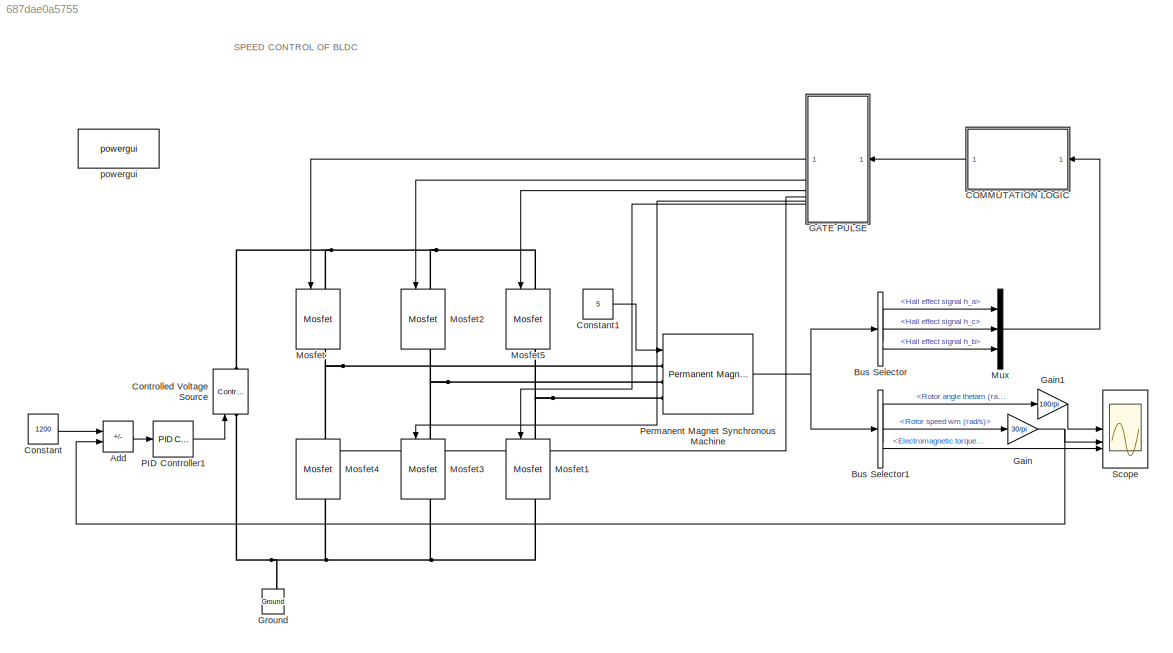
MODEL slx_687dae0a5755
KIND model
CONFIG AbsTol = auto
CONFIG EnableMultiTasking = off
CONFIG FixedStep = auto
CONFIG MaxStep = auto
CONFIG MinStep = auto
CONFIG RelTol = 1e-3
CONFIG SampleTimeConstraint = Unconstrained
CONFIG SolverName = VariableStepAuto
CONFIG StartTime = 0.0
CONFIG StopTime = 0.5
BLOCK [Sum] Add
  IconShape = rectangular
  Inputs = +-
BLOCK [BusSelector] Bus Selector
  OutputSignals = Hall effect signal h_a,Hall effect signal h_c,Hall effect signal h_b
BLOCK [BusSelector] Bus Selector1
  OutputSignals = Rotor angle thetam (rad),Rotor speed wm (rad/s),Electromagnetic torque Te (N*m)
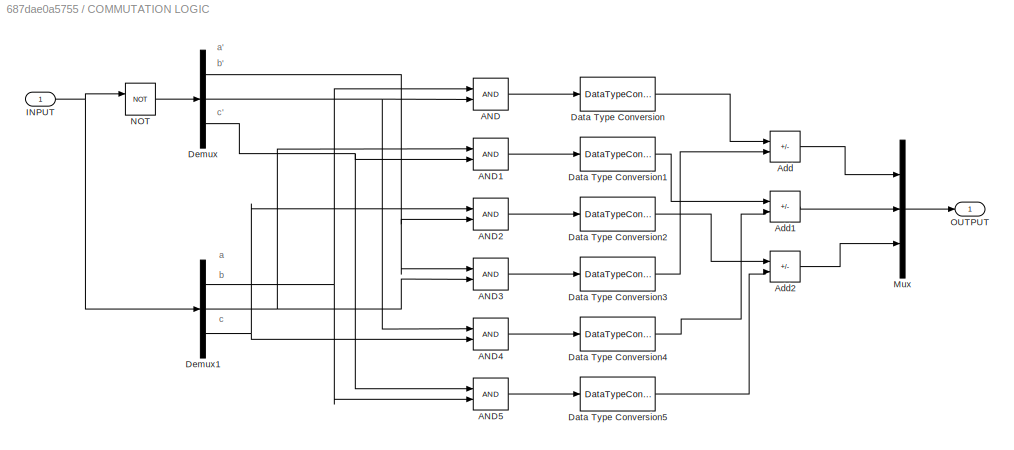
BLOCK [SubSystem] COMMUTATION LOGIC
BLOCK [Logic] COMMUTATION LOGIC/AND
  AllPortsSameDT = off
  IconShape = distinctive
  OutDataTypeStr = boolean
BLOCK [Logic] COMMUTATION LOGIC/AND1
  AllPortsSameDT = off
  IconShape = distinctive
  OutDataTypeStr = boolean
BLOCK [Logic] COMMUTATION LOGIC/AND2
  AllPortsSameDT = off
  IconShape = distinctive
  OutDataTypeStr = boolean
BLOCK [Logic] COMMUTATION LOGIC/AND3
  AllPortsSameDT = off
  IconShape = distinctive
  OutDataTypeStr = boolean
BLOCK [Logic] COMMUTATION LOGIC/AND4
  AllPortsSameDT = off
  IconShape = distinctive
  OutDataTypeStr = boolean
BLOCK [Logic] COMMUTATION LOGIC/AND5
  AllPortsSameDT = off
  IconShape = distinctive
  OutDataTypeStr = boolean
BLOCK [Sum] COMMUTATION LOGIC/Add
  IconShape = rectangular
  Inputs = +-
BLOCK [Sum] COMMUTATION LOGIC/Add1
  IconShape = rectangular
  Inputs = +-
BLOCK [Sum] COMMUTATION LOGIC/Add2
  IconShape = rectangular
  Inputs = +-
BLOCK [DataTypeConversion] COMMUTATION LOGIC/Data Type Conversion
  RndMeth = Floor
  SaturateOnIntegerOverflow = off
BLOCK [DataTypeConversion] COMMUTATION LOGIC/Data Type Conversion1
  RndMeth = Floor
  SaturateOnIntegerOverflow = off
BLOCK [DataTypeConversion] COMMUTATION LOGIC/Data Type Conversion2
  RndMeth = Floor
  SaturateOnIntegerOverflow = off
BLOCK [DataTypeConversion] COMMUTATION LOGIC/Data Type Conversion3
  RndMeth = Floor
  SaturateOnIntegerOverflow = off
BLOCK [DataTypeConversion] COMMUTATION LOGIC/Data Type Conversion4
  RndMeth = Floor
  SaturateOnIntegerOverflow = off
BLOCK [DataTypeConversion] COMMUTATION LOGIC/Data Type Conversion5
  RndMeth = Floor
  SaturateOnIntegerOverflow = off
BLOCK [Demux] COMMUTATION LOGIC/Demux
  Outputs = 3
BLOCK [Demux] COMMUTATION LOGIC/Demux1
  Outputs = 3
BLOCK [Inport] COMMUTATION LOGIC/INPUT
BLOCK [Mux] COMMUTATION LOGIC/Mux
  DisplayOption = bar
  Inputs = 3
BLOCK [Logic] COMMUTATION LOGIC/NOT
  AllPortsSameDT = off
  IconShape = distinctive
  Operator = NOT
  OutDataTypeStr = boolean
BLOCK [Outport] COMMUTATION LOGIC/OUTPUT
BLOCK [Constant] Constant
  Value = 1200
BLOCK [Constant] Constant1
  Value = 5
BLOCK [Reference] Controlled Voltage Source  REF=spsControlledVoltageSourceLib/Controlled Voltage Source
  LibrarySourceBlock = sps_lib/Sources/Controlled Voltage Source
  SourceBlock = spsControlledVoltageSourceLib/Controlled Voltage Source
  SourceType = Controlled Voltage Source
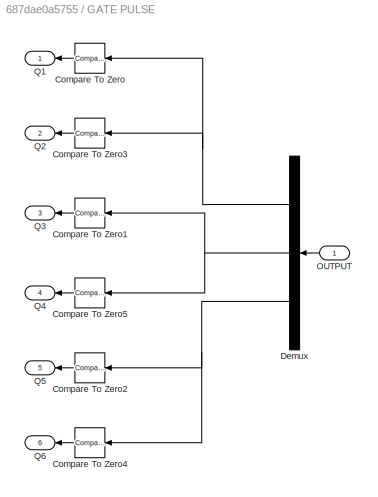
BLOCK [SubSystem] GATE PULSE
BLOCK [Reference] GATE PULSE/Compare To Zero  REF=hdlsllib/Logic and Bit
Operations/Compare
To Zero
  NameLocation = top
  SourceBlock = hdlsllib/Logic and Bit\nOperations/Compare\nTo Zero
  SourceType = Compare To Zero
BLOCK [Reference] GATE PULSE/Compare To Zero1  REF=hdlsllib/Logic and Bit
Operations/Compare
To Zero
  NameLocation = top
  SourceBlock = hdlsllib/Logic and Bit\nOperations/Compare\nTo Zero
  SourceType = Compare To Zero
BLOCK [Reference] GATE PULSE/Compare To Zero2  REF=hdlsllib/Logic and Bit
Operations/Compare
To Zero
  NameLocation = top
  SourceBlock = hdlsllib/Logic and Bit\nOperations/Compare\nTo Zero
  SourceType = Compare To Zero
BLOCK [Reference] GATE PULSE/Compare To Zero3  REF=hdlsllib/Logic and Bit
Operations/Compare
To Zero
  NameLocation = top
  SourceBlock = hdlsllib/Logic and Bit\nOperations/Compare\nTo Zero
  SourceType = Compare To Zero
BLOCK [Reference] GATE PULSE/Compare To Zero4  REF=hdlsllib/Logic and Bit
Operations/Compare
To Zero
  NameLocation = top
  SourceBlock = hdlsllib/Logic and Bit\nOperations/Compare\nTo Zero
  SourceType = Compare To Zero
BLOCK [Reference] GATE PULSE/Compare To Zero5  REF=hdlsllib/Logic and Bit
Operations/Compare
To Zero
  NameLocation = top
  SourceBlock = hdlsllib/Logic and Bit\nOperations/Compare\nTo Zero
  SourceType = Compare To Zero
BLOCK [Demux] GATE PULSE/Demux
  NameLocation = top
  Outputs = 3
BLOCK [Inport] GATE PULSE/OUTPUT
BLOCK [Outport] GATE PULSE/Q1
BLOCK [Outport] GATE PULSE/Q2
  Port = 2
BLOCK [Outport] GATE PULSE/Q3
  Port = 3
BLOCK [Outport] GATE PULSE/Q4
  Port = 4
BLOCK [Outport] GATE PULSE/Q5
  Port = 5
BLOCK [Outport] GATE PULSE/Q6
  Port = 6
BLOCK [Gain] Gain
  Gain = 30/pi
BLOCK [Gain] Gain1
  Gain = 180/pi
BLOCK [Reference] Ground  REF=spsGroundLib/Ground
  LibrarySourceBlock = sps_lib/Utilities/Ground
  NameLocation = right
  SourceBlock = spsGroundLib/Ground
  SourceType = Ground
BLOCK [Reference] Mosfet  REF=spsMosfetLib/Mosfet
  LibrarySourceBlock = sps_lib/Power Electronics/Mosfet
  NameLocation = left
  SourceBlock = spsMosfetLib/Mosfet
  SourceType = Mosfet
BLOCK [Reference] Mosfet1  REF=spsMosfetLib/Mosfet
  LibrarySourceBlock = sps_lib/Power Electronics/Mosfet
  NameLocation = left
  SourceBlock = spsMosfetLib/Mosfet
  SourceType = Mosfet
BLOCK [Reference] Mosfet2  REF=spsMosfetLib/Mosfet
  LibrarySourceBlock = sps_lib/Power Electronics/Mosfet
  NameLocation = left
  SourceBlock = spsMosfetLib/Mosfet
  SourceType = Mosfet
BLOCK [Reference] Mosfet3  REF=spsMosfetLib/Mosfet
  LibrarySourceBlock = sps_lib/Power Electronics/Mosfet
  NameLocation = left
  SourceBlock = spsMosfetLib/Mosfet
  SourceType = Mosfet
BLOCK [Reference] Mosfet4  REF=spsMosfetLib/Mosfet
  LibrarySourceBlock = sps_lib/Power Electronics/Mosfet
  NameLocation = left
  SourceBlock = spsMosfetLib/Mosfet
  SourceType = Mosfet
BLOCK [Reference] Mosfet5  REF=spsMosfetLib/Mosfet
  LibrarySourceBlock = sps_lib/Power Electronics/Mosfet
  NameLocation = left
  SourceBlock = spsMosfetLib/Mosfet
  SourceType = Mosfet
BLOCK [Mux] Mux
  DisplayOption = bar
  Inputs = 3
BLOCK [Reference] PID Controller1  REF=slpidlib/PID Controller
  LibrarySourceBlock = simulink/Continuous/PID Controller
  SourceBlock = slpidlib/PID Controller
  SourceType = PID 1dof
BLOCK [Reference] Permanent Magnet Synchronous Machine  REF=spsPermanentMagnetSynchronousMachineLib/Permanent Magnet
Synchronous Machine
  LibrarySourceBlock = sps_lib/Electrical Machines/Permanent Magnet\nSynchronous Machine
  SourceBlock = spsPermanentMagnetSynchronousMachineLib/Permanent Magnet\nSynchronous Machine
  SourceType = Permanent Magnet Synchronous Machine
BLOCK [Scope] Scope
  Floating = off
  NumInputPorts = 3
  ScopeSpecificationString = Simulink.scopes.TimeScopeBlockCfg('CurrentConfiguration', extmgr.ConfigurationSet(extmgr.Configuration('Core','General UI',true),extmgr.Configuration('Core','Source UI',true),extmgr.Configuration('Sources','WiredSimulink',true),extmgr.Configuration('Visuals','Time Domain',true,'SerializedDisplays',{struct('MinYLimReal','-510.81662','MaxYLimReal','3836.3353','YLabelReal','','MinYLimMag',' 0.00000',...<+2693ch>
BLOCK [Reference] powergui  REF=spspowerguiLib/powergui
  LibrarySourceBlock = sps_lib/powergui
  Priority = 1
  SourceBlock = spspowerguiLib/powergui
  SourceType = PSB option menu block
ANNOTATION (root): SPEED CONTROL OF BLDC
ANNOTATION COMMUTATION LOGIC: a
ANNOTATION COMMUTATION LOGIC: a'
ANNOTATION COMMUTATION LOGIC: b
ANNOTATION COMMUTATION LOGIC: b'
ANNOTATION COMMUTATION LOGIC: c
ANNOTATION COMMUTATION LOGIC: c'
LINE Add:1 -> PID Controller1:1
LINE Bus Selector1:1 -> Gain1:1
LINE Bus Selector1:2 -> Gain:1
LINE Bus Selector1:3 -> Scope:3
LINE Bus Selector:1 -> Mux:1
LINE Bus Selector:2 -> Mux:2
LINE Bus Selector:3 -> Mux:3
LINE COMMUTATION LOGIC/AND1:1 -> COMMUTATION LOGIC/Data Type Conversion1:1
LINE COMMUTATION LOGIC/AND2:1 -> COMMUTATION LOGIC/Data Type Conversion2:1
LINE COMMUTATION LOGIC/AND3:1 -> COMMUTATION LOGIC/Data Type Conversion3:1
LINE COMMUTATION LOGIC/AND4:1 -> COMMUTATION LOGIC/Data Type Conversion4:1
LINE COMMUTATION LOGIC/AND5:1 -> COMMUTATION LOGIC/Data Type Conversion5:1
LINE COMMUTATION LOGIC/AND:1 -> COMMUTATION LOGIC/Data Type Conversion:1
LINE COMMUTATION LOGIC/Add1:1 -> COMMUTATION LOGIC/Mux:2
LINE COMMUTATION LOGIC/Add2:1 -> COMMUTATION LOGIC/Mux:3
LINE COMMUTATION LOGIC/Add:1 -> COMMUTATION LOGIC/Mux:1
LINE COMMUTATION LOGIC/Data Type Conversion1:1 -> COMMUTATION LOGIC/Add1:1
LINE COMMUTATION LOGIC/Data Type Conversion2:1 -> COMMUTATION LOGIC/Add2:1
LINE COMMUTATION LOGIC/Data Type Conversion3:1 -> COMMUTATION LOGIC/Add:2
LINE COMMUTATION LOGIC/Data Type Conversion4:1 -> COMMUTATION LOGIC/Add1:2
LINE COMMUTATION LOGIC/Data Type Conversion5:1 -> COMMUTATION LOGIC/Add2:2
LINE COMMUTATION LOGIC/Data Type Conversion:1 -> COMMUTATION LOGIC/Add:1
NET COMMUTATION LOGIC/Demux1:1 -> COMMUTATION LOGIC/AND5:2, COMMUTATION LOGIC/AND:1
NET COMMUTATION LOGIC/Demux1:2 -> COMMUTATION LOGIC/AND1:1, COMMUTATION LOGIC/AND3:2
NET COMMUTATION LOGIC/Demux1:3 -> COMMUTATION LOGIC/AND2:1, COMMUTATION LOGIC/AND4:2
NET COMMUTATION LOGIC/Demux:1 -> COMMUTATION LOGIC/AND2:2, COMMUTATION LOGIC/AND3:1
NET COMMUTATION LOGIC/Demux:2 -> COMMUTATION LOGIC/AND4:1, COMMUTATION LOGIC/AND:2
NET COMMUTATION LOGIC/Demux:3 -> COMMUTATION LOGIC/AND1:2, COMMUTATION LOGIC/AND5:1
NET COMMUTATION LOGIC/INPUT:1 -> COMMUTATION LOGIC/Demux1:1, COMMUTATION LOGIC/NOT:1
LINE COMMUTATION LOGIC/Mux:1 -> COMMUTATION LOGIC/OUTPUT:1
LINE COMMUTATION LOGIC/NOT:1 -> COMMUTATION LOGIC/Demux:1
LINE COMMUTATION LOGIC:1 -> GATE PULSE:1
LINE Constant1:1 -> Permanent Magnet Synchronous Machine:1
LINE Constant:1 -> Add:1
LINE GATE PULSE/Compare To Zero1:1 -> GATE PULSE/Q3:1
LINE GATE PULSE/Compare To Zero2:1 -> GATE PULSE/Q5:1
LINE GATE PULSE/Compare To Zero3:1 -> GATE PULSE/Q2:1
LINE GATE PULSE/Compare To Zero4:1 -> GATE PULSE/Q6:1
LINE GATE PULSE/Compare To Zero5:1 -> GATE PULSE/Q4:1
LINE GATE PULSE/Compare To Zero:1 -> GATE PULSE/Q1:1
NET GATE PULSE/Demux:1 -> GATE PULSE/Compare To Zero3:1, GATE PULSE/Compare To Zero:1
NET GATE PULSE/Demux:2 -> GATE PULSE/Compare To Zero1:1, GATE PULSE/Compare To Zero5:1
NET GATE PULSE/Demux:3 -> GATE PULSE/Compare To Zero2:1, GATE PULSE/Compare To Zero4:1
LINE GATE PULSE/OUTPUT:1 -> GATE PULSE/Demux:1
LINE GATE PULSE:1 -> Mosfet:1
LINE GATE PULSE:2 -> Mosfet2:1
LINE GATE PULSE:3 -> Mosfet5:1
LINE GATE PULSE:4 -> Mosfet4:1
LINE GATE PULSE:5 -> Mosfet3:1
LINE GATE PULSE:6 -> Mosfet1:1
LINE Gain1:1 -> Scope:1
NET Gain:1 -> Add:2, Scope:2
LINE Mux:1 -> COMMUTATION LOGIC:1
LINE PID Controller1:1 -> Controlled Voltage Source:1
NET Permanent Magnet Synchronous Machine:1 -> Bus Selector1:1, Bus Selector:1
PNET net1: Controlled Voltage Source:LConn1 -- Ground:LConn1 -- Mosfet1:RConn1 -- Mosfet3:RConn1 -- Mosfet4:RConn1
PNET net2: Controlled Voltage Source:RConn1 -- Mosfet2:LConn1 -- Mosfet5:LConn1 -- Mosfet:LConn1
PNET net3: Mosfet1:LConn1 -- Mosfet5:RConn1 -- Permanent Magnet Synchronous Machine:LConn3
PNET net4: Mosfet2:RConn1 -- Mosfet3:LConn1 -- Permanent Magnet Synchronous Machine:LConn2
PNET net5: Mosfet4:LConn1 -- Mosfet:RConn1 -- Permanent Magnet Synchronous Machine:LConn1
note: NET lines group one-source signal fan-out (src -> all destinations, sorted); 1:1 wires keep LINE; PNET lines group multi-terminal physical nets as a canonical sorted terminal list (undirected conserving connections); 2-terminal nets keep the pairwise PLINE form
